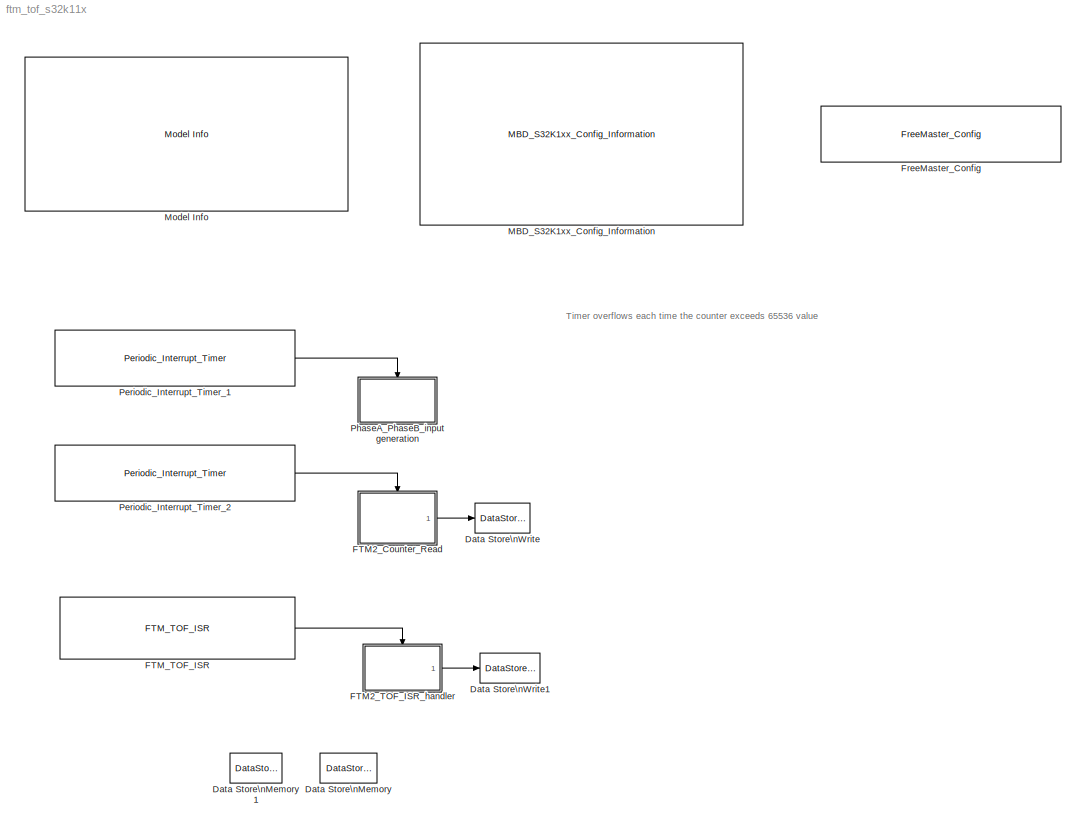
MODEL ftm_tof_s32k11x
KIND model
CONFIG InitFcn = mbd_s32k_consistency_checks(bdroot(gcs));
BLOCK [DataStoreMemory] Data Store\nMemory
  DataStoreName = Counter
  ReadBeforeWriteMsg = warning
  SID = 2
  ShowAdditionalParam = off
  WriteAfterReadMsg = warning
  WriteAfterWriteMsg = warning
BLOCK [DataStoreMemory] Data Store\nMemory1
  DataStoreName = tof
  ReadBeforeWriteMsg = warning
  SID = 3
  ShowAdditionalParam = off
  WriteAfterReadMsg = warning
  WriteAfterWriteMsg = warning
BLOCK [DataStoreWrite] Data Store\nWrite
  DataStoreName = Counter
  Ports = [1]
  SID = 4
BLOCK [DataStoreWrite] Data Store\nWrite1
  DataStoreName = tof
  Ports = [1]
  SID = 5
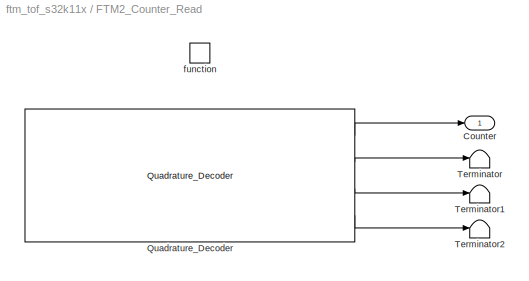
BLOCK [SubSystem] FTM2_Counter_Read
  Ports = [0, 1, 0, 1]
  Priority = 0
  RTWSystemCode = Nonreusable function
  RequestExecContextInheritance = off
  SID = 6
  TreatAsAtomicUnit = on
  Variant = off
BLOCK [Outport] FTM2_Counter_Read/Counter
  IconDisplay = Port number
  SID = 9
BLOCK [Reference] FTM2_Counter_Read/Quadrature_Decoder  REF=mbd_s32k1xx_ec_toolbox/Motor Control Blocks/FTM Blocks/Quadrature_Decoder
  Ports = [0, 4]
  Priority = 1
  SID = 8
  SourceBlock = mbd_s32k1xx_ec_toolbox/Motor Control Blocks/FTM Blocks/Quadrature_Decoder
  SourceType = FTM_s32k_qd_block
  cntin = 0
  ec_mode = Phase A and Phase B
  ftmModule = 1
  mod = 65535
  phA_filter = 0
  phA_filtr_en = off
  phA_pin = PTB3: [FTM1_QD_PHA | FTM quadrature Decode PhaseA]
  phB_filter = 0
  phB_filtr_en = off
  phB_pin = PTB2: [FTM1_QD_PHB | FTM quadrature Decode PhaseB]
  polA = Normal
  polB = Normal
  prescaler = 1
BLOCK [Terminator] FTM2_Counter_Read/Terminator
  SID = 33
BLOCK [Terminator] FTM2_Counter_Read/Terminator1
  SID = 34
BLOCK [Terminator] FTM2_Counter_Read/Terminator2
  SID = 35
BLOCK [TriggerPort] FTM2_Counter_Read/function
  Ports = []
  SID = 7
  StatesWhenEnabling = held
  TriggerType = function-call
  VariantControl = Variant
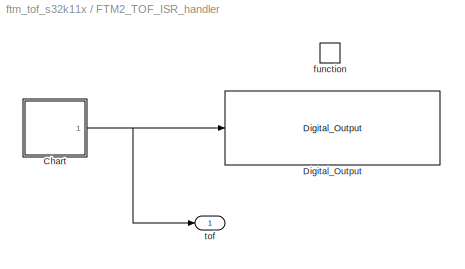
BLOCK [SubSystem] FTM2_TOF_ISR_handler
  Ports = [0, 1, 0, 1]
  RTWSystemCode = Nonreusable function
  RequestExecContextInheritance = off
  SID = 10
  TreatAsAtomicUnit = on
  Variant = off
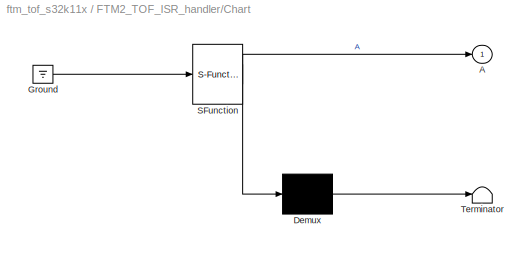
BLOCK [SubSystem] FTM2_TOF_ISR_handler/Chart
  ErrorFcn = Stateflow.Translate.translate
  PermitHierarchicalResolution = ExplicitOnly
  Ports = [0, 1]
  RequestExecContextInheritance = off
  SFBlockType = Chart
  SID = 12
  TreatAsAtomicUnit = on
  Variant = off
BLOCK [Outport] FTM2_TOF_ISR_handler/Chart/ A
  IconDisplay = Port number
  SID = 12::6
BLOCK [Demux] FTM2_TOF_ISR_handler/Chart/ Demux 
  Outputs = 1
  Ports = [1, 1]
  SID = 12::36
BLOCK [Ground] FTM2_TOF_ISR_handler/Chart/ Ground 
  SID = 12::38
BLOCK [S-Function] FTM2_TOF_ISR_handler/Chart/ SFunction 
  EnableBusSupport = off
  FunctionName = sf_sfun
  PortCounts = [1 2]
  Ports = [1, 2]
  SFcnIsStateOwnerBlock = off
  SFunctionDeploymentMode = off
  SID = 12::35
  Tag = Stateflow S-Function ftm_tof_s32k11x 1
BLOCK [Terminator] FTM2_TOF_ISR_handler/Chart/ Terminator 
  SID = 12::37
BLOCK [Reference] FTM2_TOF_ISR_handler/Digital_Output  REF=mbd_s32k1xx_ec_toolbox/GPIO Blocks/Digital_Output
  Ports = [1]
  SID = 13
  SourceBlock = mbd_s32k1xx_ec_toolbox/GPIO Blocks/Digital_Output
  SourceType = gpio_s32k_output
  drive_strength = Low
  gpio_pin = PTD15: [PTD15 | Port D I/O]
  init_val = Low
BLOCK [TriggerPort] FTM2_TOF_ISR_handler/function
  Ports = []
  SID = 11
  StatesWhenEnabling = held
  TriggerType = function-call
  VariantControl = Variant
BLOCK [Outport] FTM2_TOF_ISR_handler/tof
  IconDisplay = Port number
  SID = 14
BLOCK [Reference] FTM_TOF_ISR  REF=mbd_s32k1xx_ec_toolbox/Motor Control Blocks/FTM Blocks/FTM_TOF_ISR
  Ports = [0, 1]
  Priority = 11
  SID = 15
  SourceBlock = mbd_s32k1xx_ec_toolbox/Motor Control Blocks/FTM Blocks/FTM_TOF_ISR
  SourceType = FTM_s32k_tof_isr_block
  ftmModule = 1
  isrlevel = 3
  mcuTargetUpdate = 0
BLOCK [Reference] FreeMaster_Config  REF=mbd_s32k1xx_ec_toolbox/Utility Blocks/FreeMaster_Config
  Ports = []
  SID = 16
  SourceBlock = mbd_s32k1xx_ec_toolbox/Utility Blocks/FreeMaster_Config
  SourceType = fm_s32k_config
  baudrate = 115200
  comm_buffer_size = 255
  comm_buffer_size_auto = on
  comm_rqueue_size = 32
  comm_rqueue_size_default = on
  interface = LPUART0
  isr_prio = 0
  max_rec_vars = 8
  max_scope_vars = 8
  mode = Short Interrupt
  rec_buff_size = 1024
  rec_timebase = 0
  rec_timebase_unit = milliseconds
  rxd = PTB0: [LPUART0_RX | Receive]
  show_adv_opts = off
  txd = PTB1: [LPUART0_TX | Transmit]
  use_recorder = on
  use_scope = on
BLOCK [Reference] MBD_S32K1xx_Config_Information  REF=mbd_s32k1xx_ec_toolbox/MBD_S32K1xx_Config_Information
  ADC_PcrCheckEnDis = on
  AMMCLIB_PcrCheckEnDis = on
  CMP_PcrCheckEnDis = on
  CSEc_PcrCheckEnDis = on
  ConfigParams_PcrCheckEnDis = on
  FM_PcrCheckEnDis = on
  FTM_Dual_Edge_Inputs_PcrCheckEnDis = on
  FTM_Hall_Sensor_Inputs_PcrCheckEnDis = on
  FTM_Input_Edge_Inputs_PcrCheckEnDis = on
  FTM_PWM_PcrCheckEnDis = on
  FTM_Quadrature_Inputs_PcrCheckEnDis = on
  FlexCAN_PcrCheckEnDis = on
  FlexIO_PcrCheckEnDis = on
  GPIO_InputPcrCheckEnDis = on
  GPIO_OutputPcrCheckEnDis = on
  LIN_PcrCheckEnDis = on
  LPI2C_PcrCheckEnDis = on
  LPSPI_PcrCheckEnDis = on
  LPTMR_PcrCheckEnDis = on
  LPUART_PcrCheckEnDis = on
  ModelRef_PcrCheckEnDis = on
  PDB0_PcrCheckEnDis = on
  PIT_PcrCheckEnDis = on
  Ports = []
  Profile_PcrCheckEnDis = on
  RTC_PcrCheckEnDis = on
  SBC_PcrCheckEnDis = on
  SID = 1
  SourceBlock = mbd_s32k1xx_ec_toolbox/MBD_S32K1xx_Config_Information
  SourceType = MBDTBX_EC_S32K
  WDOG_PcrCheckEnDis = on
  config_params = []
  disp_str = Target : S32K144-64KB_SRAM\nPackage : 100-pin\nSystem clock : 80 MHz\nXTAL clock : External 8 MHz\nCompiler : IAR\nTarget Type : FLASH\nDownload Code after build : off\nStep Tick Interrupt Priority : 15
  ds_import_enable = on
  eDMA_PcrCheckEnDis = on
  gcc_target_assemble_opts = -mcpu=cortex-m0plus -mthumb -g
  gcc_target_compile_opts = -mcpu=cortex-m0plus -mthumb -O1 -g -gstrict-dwarf
  gcc_target_default_lcf = on
  gcc_target_link_opts = -mcpu=cortex-m0plus -mthumb
  gcc_target_user_lcf = S32K118_25_flash.ld
  ghs_target_assemble_opts = -mcpu=cortexm0plus -mthumb -fsoft --gnu_asm
  ghs_target_compile_opts = -mcpu=cortexm0plus -mthumb -fsoft -Ogeneral -Wundef -Wimplicit-int -Wshadow -Wtrigraphs --no_commons --gnu_asm -gnu99 -gdwarf-2 -G
  ghs_target_default_lcf = on
  ghs_target_link_opts = -mcpu=cortexm0plus -mthumb -fsoft
  ghs_target_user_lcf = S32K118_25_flash.ld
  iar_target_assemble_opts = --thumb
  iar_target_compile_opts = --thumb -Ol -e --debug --dlib_config normal
  iar_target_default_lcf = on
  iar_target_link_opts = --no_exceptions --vfe --inline
  iar_target_user_lcf = S32K118_25_flash.icf
  mbdt_ver = 0
  mcu_steptick_prio = 0
  mcu_steptick_timer = LPIT Channel 0
  mcu_system_clock_freq = 40
  mcu_target_name = S32K118
  mcu_target_package = 64-LQFP
  mcu_target_sram_size = 25KB
  mcu_xtal_freq = External 40
  pil_download_enable = off
  pil_download_rate = 57600
  pil_opensda_drive = Custom
  pil_opensda_drive_custom = D
  pil_uart_instance = 0
  pil_uart_rx = PTB0: [LPUART0_RX | Receive]
  pil_uart_tx = PTB1: [LPUART0_TX | Transmit]
  rbl_com_port = Custom
  rbl_com_port_custom = COM1
  rbl_download_enable = on
  rbl_download_interface = OpenSDA
  rbl_restart_request = off
  rbl_start_delay = 5000
  target_compiler = GCC
  target_memory = FLASH
BLOCK [Reference] Model Info  REF=simulink/Model-Wide\nUtilities/Model Info
  DisplayStringWithTags = Model Name: %<ModelName>\n\nDescription: %<Description>
  Frame = off
  HorizontalTextAlignment = Left
  LeftAlignmentValue = 0.02
  MaskDisplayString = Model Name: ftm_tof_s32k11x\\n\\nDescription: This model shows FlexTimer TOF interrupt.<path>) output to FTM2 Phase B input PTB2 (J2.6)\\n\\nValidation:\\nYou can see FTM2 Counter value increment by FreeMaster.\\nFTM2 TOF interrupt toggles PTD15 (J4.12) pin output.
  Ports = []
  SID = 29
  SourceBlock = simulink/Model-Wide\nUtilities/Model Info
  SourceProductBaseCode = SL
  SourceProductName = Simulink
  SourceType = CMBlock
BLOCK [Reference] Periodic_Interrupt_Timer_1  REF=mbd_s32k1xx_ec_toolbox/Utility Blocks/Periodic_Interrupt_Timer
  Ports = [0, 1]
  SID = 17
  SourceBlock = mbd_s32k1xx_ec_toolbox/Utility Blocks/Periodic_Interrupt_Timer
  SourceType = timer_s32k_lpit
  channel = 1
  period = 50
  prio = 2
  startCounter = on
BLOCK [Reference] Periodic_Interrupt_Timer_2  REF=mbd_s32k1xx_ec_toolbox/Utility Blocks/Periodic_Interrupt_Timer
  Ports = [0, 1]
  SID = 18
  SourceBlock = mbd_s32k1xx_ec_toolbox/Utility Blocks/Periodic_Interrupt_Timer
  SourceType = timer_s32k_lpit
  channel = 2
  period = 100
  prio = 3
  startCounter = on
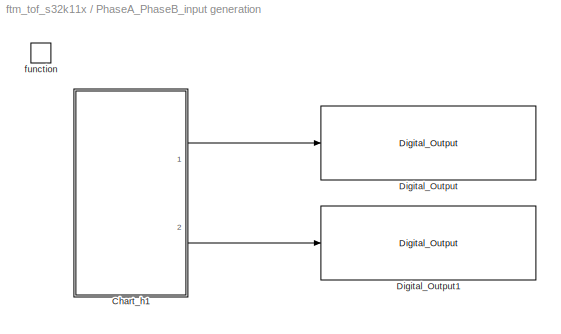
BLOCK [SubSystem] PhaseA_PhaseB_input generation
  Ports = [0, 0, 0, 1]
  RTWSystemCode = Nonreusable function
  RequestExecContextInheritance = off
  SID = 19
  TreatAsAtomicUnit = on
  Variant = off
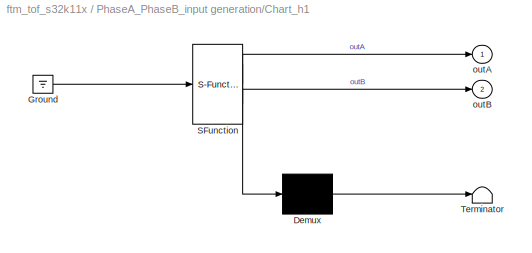
BLOCK [SubSystem] PhaseA_PhaseB_input generation/Chart_h1
  ErrorFcn = Stateflow.Translate.translate
  PermitHierarchicalResolution = ExplicitOnly
  Ports = [0, 2]
  RequestExecContextInheritance = off
  SFBlockType = Chart
  SID = 21
  TreatAsAtomicUnit = on
  Variant = off
BLOCK [Demux] PhaseA_PhaseB_input generation/Chart_h1/ Demux 
  Outputs = 1
  Ports = [1, 1]
  SID = 21::53
BLOCK [Ground] PhaseA_PhaseB_input generation/Chart_h1/ Ground 
  SID = 21::55
BLOCK [S-Function] PhaseA_PhaseB_input generation/Chart_h1/ SFunction 
  EnableBusSupport = off
  FunctionName = sf_sfun
  PortCounts = [1 3]
  Ports = [1, 3]
  SFcnIsStateOwnerBlock = off
  SFunctionDeploymentMode = off
  SID = 21::52
  Tag = Stateflow S-Function ftm_tof_s32k11x 4
BLOCK [Terminator] PhaseA_PhaseB_input generation/Chart_h1/ Terminator 
  SID = 21::54
BLOCK [Outport] PhaseA_PhaseB_input generation/Chart_h1/outA
  IconDisplay = Port number
  SID = 21::30
BLOCK [Outport] PhaseA_PhaseB_input generation/Chart_h1/outB
  IconDisplay = Port number
  Port = 2
  SID = 21::31
BLOCK [Reference] PhaseA_PhaseB_input generation/Digital_Output  REF=mbd_s32k1xx_ec_toolbox/GPIO Blocks/Digital_Output
  Ports = [1]
  SID = 22
  SourceBlock = mbd_s32k1xx_ec_toolbox/GPIO Blocks/Digital_Output
  SourceType = gpio_s32k_output
  drive_strength = Low
  gpio_pin = PTB4: [PTB4 | Port B I/O]
  init_val = Low
BLOCK [Reference] PhaseA_PhaseB_input generation/Digital_Output1  REF=mbd_s32k1xx_ec_toolbox/GPIO Blocks/Digital_Output
  Ports = [1]
  SID = 23
  SourceBlock = mbd_s32k1xx_ec_toolbox/GPIO Blocks/Digital_Output
  SourceType = gpio_s32k_output
  drive_strength = Low
  gpio_pin = PTB5: [PTB5 | Port B I/O]
  init_val = Low
BLOCK [TriggerPort] PhaseA_PhaseB_input generation/function
  Ports = []
  SID = 20
  StatesWhenEnabling = held
  TriggerType = function-call
  VariantControl = Variant
ANNOTATION (root): \n \n Timer overflows each time the counter exceeds 65536 value \n
LINE FTM2_Counter_Read/Quadrature_Decoder:1 -> FTM2_Counter_Read/Counter:1
LINE FTM2_Counter_Read/Quadrature_Decoder:2 -> FTM2_Counter_Read/Terminator:1
LINE FTM2_Counter_Read/Quadrature_Decoder:3 -> FTM2_Counter_Read/Terminator1:1
LINE FTM2_Counter_Read/Quadrature_Decoder:4 -> FTM2_Counter_Read/Terminator2:1
LINE FTM2_Counter_Read:1 -> Data Store\nWrite:1
LINE FTM2_TOF_ISR_handler/Chart/ Demux :1 -> FTM2_TOF_ISR_handler/Chart/ Terminator :1
LINE FTM2_TOF_ISR_handler/Chart/ Ground :1 -> FTM2_TOF_ISR_handler/Chart/ SFunction :1
LINE FTM2_TOF_ISR_handler/Chart/ SFunction :1 -> FTM2_TOF_ISR_handler/Chart/ Demux :1
LINE FTM2_TOF_ISR_handler/Chart/ SFunction :2 -> FTM2_TOF_ISR_handler/Chart/ A:1
NET FTM2_TOF_ISR_handler/Chart:1 -> FTM2_TOF_ISR_handler/Digital_Output:1, FTM2_TOF_ISR_handler/tof:1
LINE FTM2_TOF_ISR_handler:1 -> Data Store\nWrite1:1
LINE FTM_TOF_ISR:1 -> FTM2_TOF_ISR_handler:trigger
LINE Periodic_Interrupt_Timer_1:1 -> PhaseA_PhaseB_input generation:trigger
LINE Periodic_Interrupt_Timer_2:1 -> FTM2_Counter_Read:trigger
LINE PhaseA_PhaseB_input generation/Chart_h1/ Demux :1 -> PhaseA_PhaseB_input generation/Chart_h1/ Terminator :1
LINE PhaseA_PhaseB_input generation/Chart_h1/ Ground :1 -> PhaseA_PhaseB_input generation/Chart_h1/ SFunction :1
LINE PhaseA_PhaseB_input generation/Chart_h1/ SFunction :1 -> PhaseA_PhaseB_input generation/Chart_h1/ Demux :1
LINE PhaseA_PhaseB_input generation/Chart_h1/ SFunction :2 -> PhaseA_PhaseB_input generation/Chart_h1/outA:1
LINE PhaseA_PhaseB_input generation/Chart_h1/ SFunction :3 -> PhaseA_PhaseB_input generation/Chart_h1/outB:1
LINE PhaseA_PhaseB_input generation/Chart_h1:1 -> PhaseA_PhaseB_input generation/Digital_Output:1
LINE PhaseA_PhaseB_input generation/Chart_h1:2 -> PhaseA_PhaseB_input generation/Digital_Output1:1
note: NET lines group one-source signal fan-out (src -> all destinations, sorted); 1:1 wires keep LINE
CHART FTM2_TOF_ISR_handler/Chart states=2 transitions=3
  STATE_LABEL 'A'
  STATE_LABEL 'A1'
CHART PhaseA_PhaseB_input generation/Chart_h1 states=4 transitions=5
  STATE_LABEL 'A0\\ndu:\\ncntr=cntr+1;'
  STATE_LABEL 'A1\\ndu:\\ncntr=cntr+1;'
  STATE_LABEL 'A2\\ndu:\\ncntr=cntr+1;'
  STATE_LABEL 'A3\\ndu:\\ncntr=cntr+1;'
note: 1 file-system path scrubbed to <path> (not preserved elsewhere — flat text is the only slx artifact)
